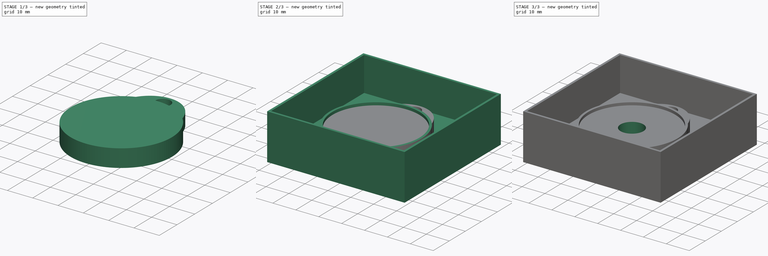
[diagram: build sequence overview — one tinted view per stage of 3, left to right]
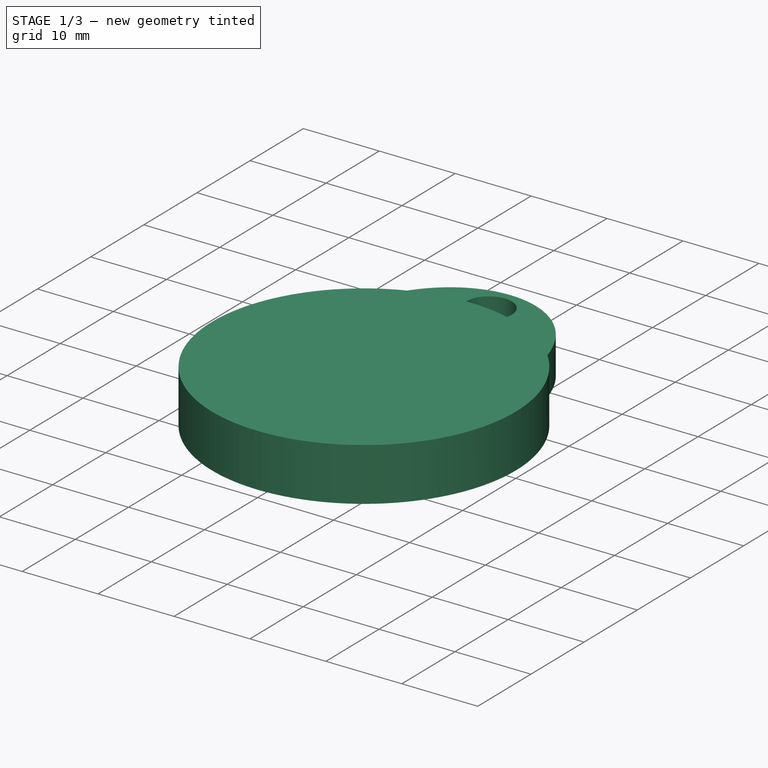
[diagram: stage 1 of 3 — iso view after this stage's code; geometry added in this stage tinted green]
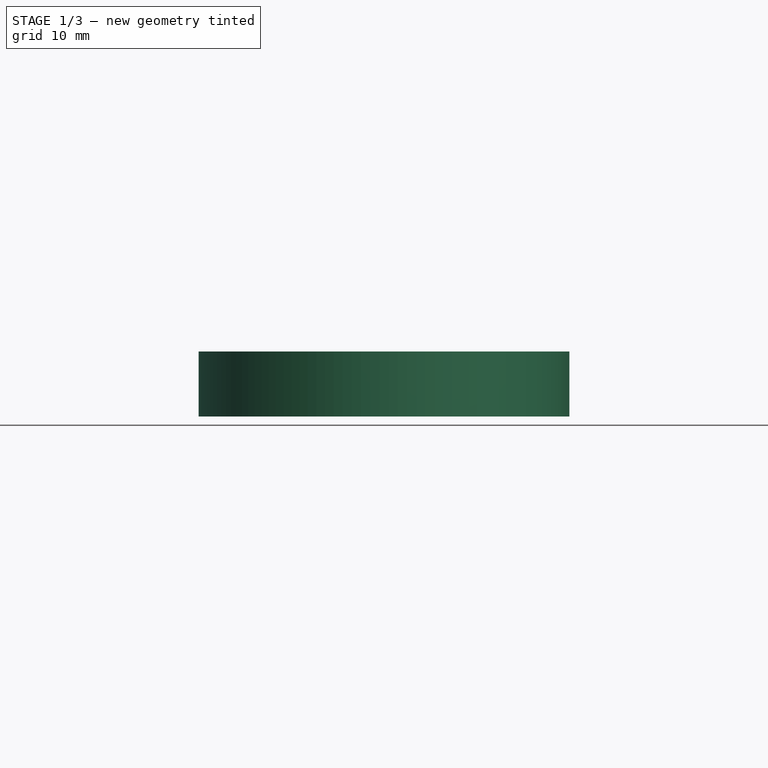
[diagram: stage 1 of 3 — front view after this stage's code; geometry added in this stage tinted green]
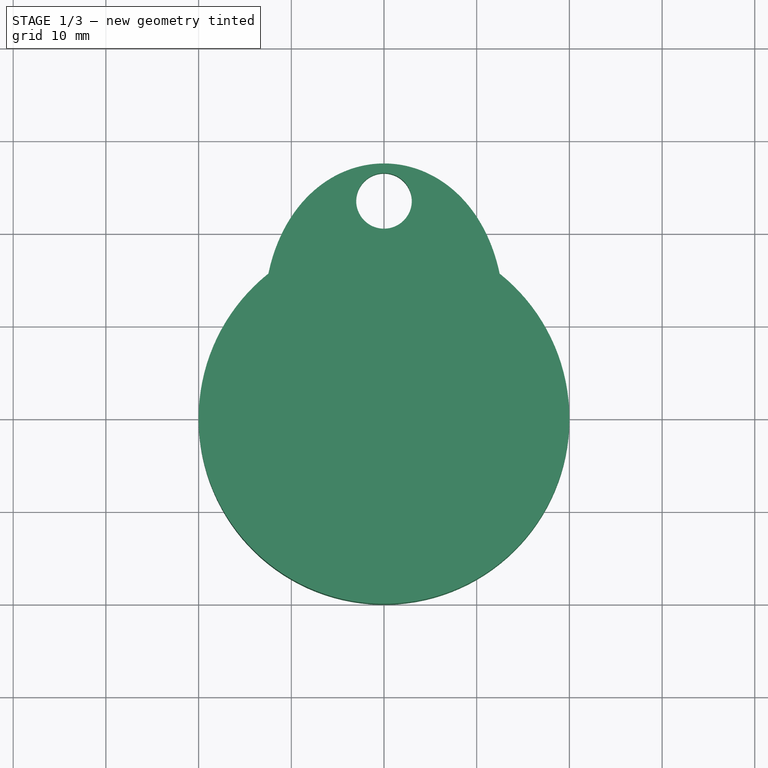
[diagram: stage 1 of 3 — top view after this stage's code; geometry added in this stage tinted green]
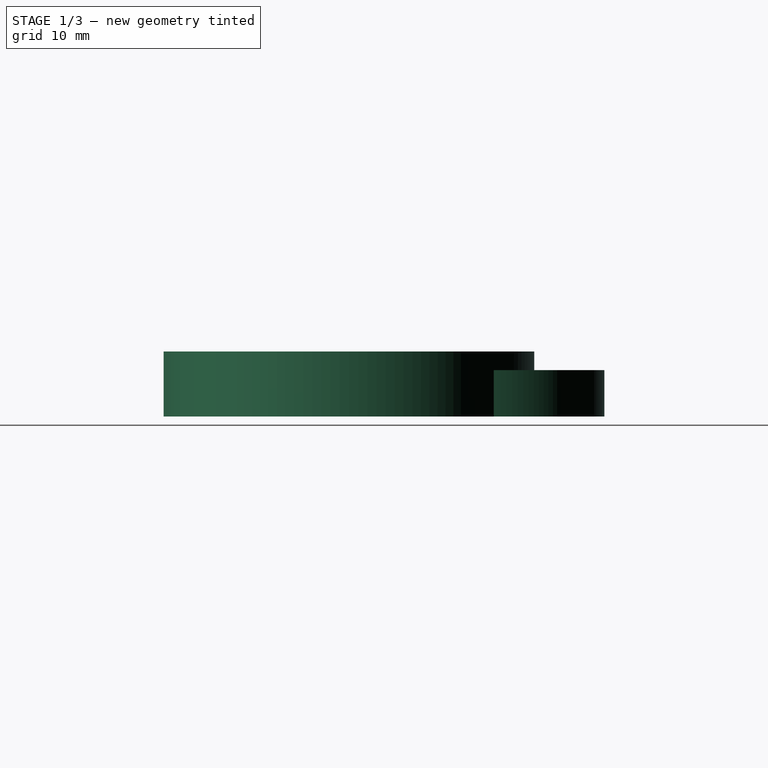
[diagram: stage 1 of 3 — right view after this stage's code; geometry added in this stage tinted green]
FCSTD DOCUMENT  (FreeCAD 0.18R14996 (Git))
Label: Medallion Base Rev F
License: All rights reserved
LicenseURL: http://en.wikipedia.org/wiki/All_rights_reserved
objects: Sketcher::SketchObject×7, PartDesign::Pad×5, PartDesign::Pocket×2, PartDesign::Body×1
note: 22 computed .brp shape members not serialized (recipe doc carries the construction recipe); baked Part::Feature solids carry a one-line shape summary decoded from their .brp

FEATURE [Sketcher::SketchObject] Sketch  label="Medallion Body Profile"
  MapMode = 5
  Support = -> [XY_Plane]
  sketch-geometry (1):
    g0: Circle CenterX=0 CenterY=0 CenterZ=0 NormalX=0 NormalY=0 NormalZ=1 AngleXU=0 Radius=20
  constraints (2):
    c: Coincident(g0,g-1)
    c: Radius(g0) = 20
FEATURE [PartDesign::Pad] Pad  label="Medallion Body"
  Length = 7
  Length2 = 100
  Profile = -> Sketch
  Type = 0
FEATURE [Sketcher::SketchObject] Sketch001  label="Lanyard Eye Profile"
  ExternalGeometry = -> [Sketch]
  MapMode = 5
  Support = -> [XY_Plane]
  sketch-geometry (11):
    g0: Circle CenterX=0 CenterY=23.513 CenterZ=0 NormalX=0 NormalY=0 NormalZ=1 AngleXU=0 Radius=3
    g1-g5: Circle [constr] x5 (B-spline internal-alignment scaffolding for g6; pole/knot coordinates omitted)
    g6: BSplineCurve PolesCount=5 KnotsCount=3 Degree=3 IsPeriodic=0
    g7: GeomPoint [constr] X=0 Y=18.9316 Z=0
    g8: GeomPoint [constr] X=4.45941 Y=14.3218 Z=0
    g9: LineSegment [constr] StartX=-10.8298 StartY=23.4836 StartZ=0 EndX=10.8298 EndY=23.4836 EndZ=0
    g10: LineSegment StartX=-12.4847 StartY=15.6247 StartZ=0 EndX=12.4847 EndY=15.6247 EndZ=0
  constraints (17):
    c: Radius(g0) = 3
    c: PointOnObject(g0,g-2)
    c: Radius(g1) = 0.8
    c: Equal(g1,g2)
    c: Equal(g1,g3)
    c: PointOnObject(g3,g-2)
    c: Equal(g1,g4)
    c: Equal(g1,g5)
    c: PointOnObject(g6,g-3)
    c: InternalAlignment(g1-g5 -> g6) x5
    c: Symmetric(g2,g4,g-2)
    c: PointOnObject(g1,g-3)
    c: Coincident(g9,g2)
    c: Coincident(g9,g4)
    c: Coincident(g10,g5)
    c: Horizontal(g10)
    c: Coincident(g10,g1)
FEATURE [PartDesign::Pad] Pad001  label="Lanyard Eye"
  BaseFeature = -> Pad
  Length = 5
  Length2 = 100
  Profile = -> Sketch001
  Type = 0
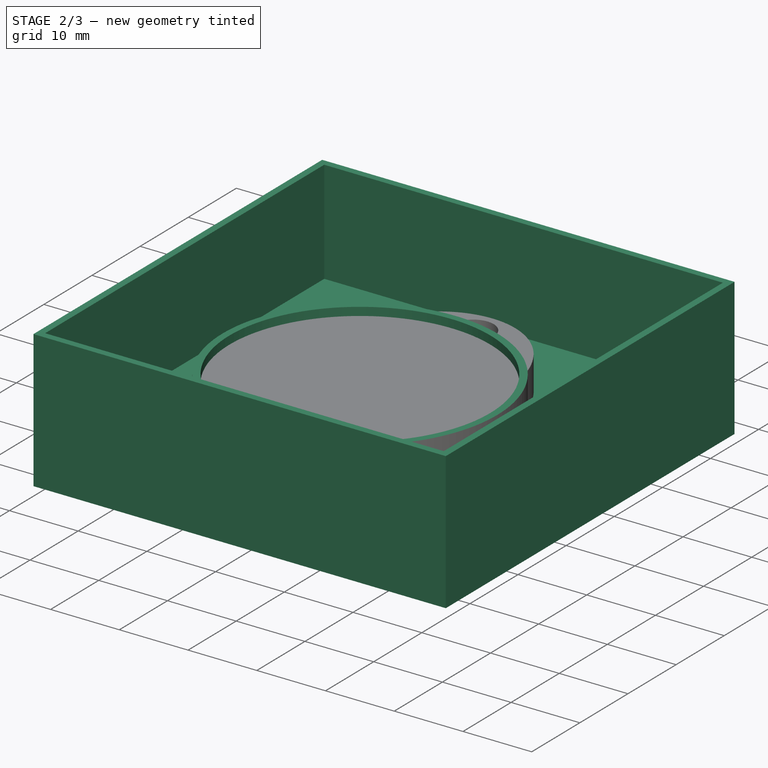
[diagram: stage 2 of 3 — iso view after this stage's code; geometry added in this stage tinted green]
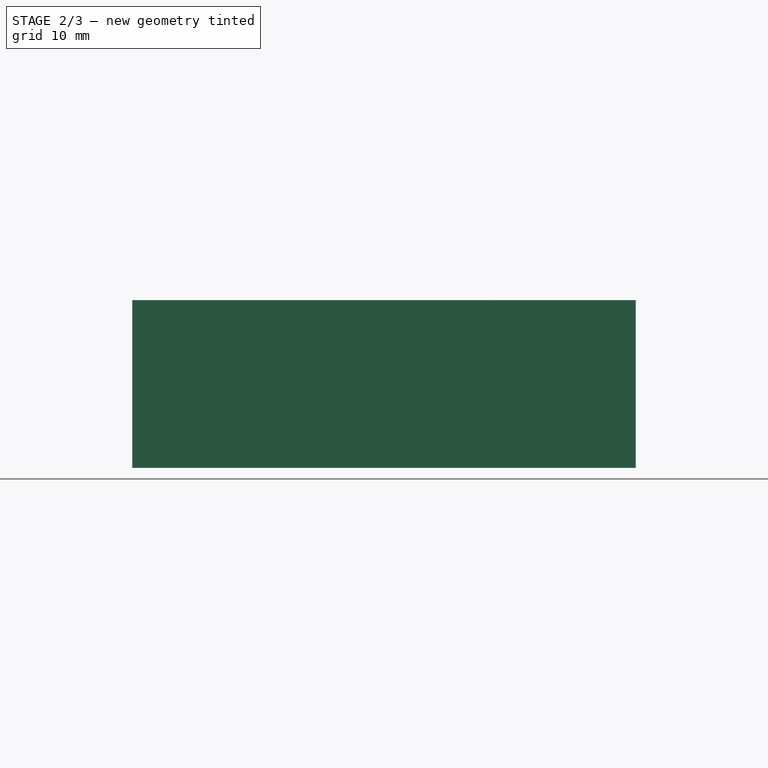
[diagram: stage 2 of 3 — front view after this stage's code; geometry added in this stage tinted green]
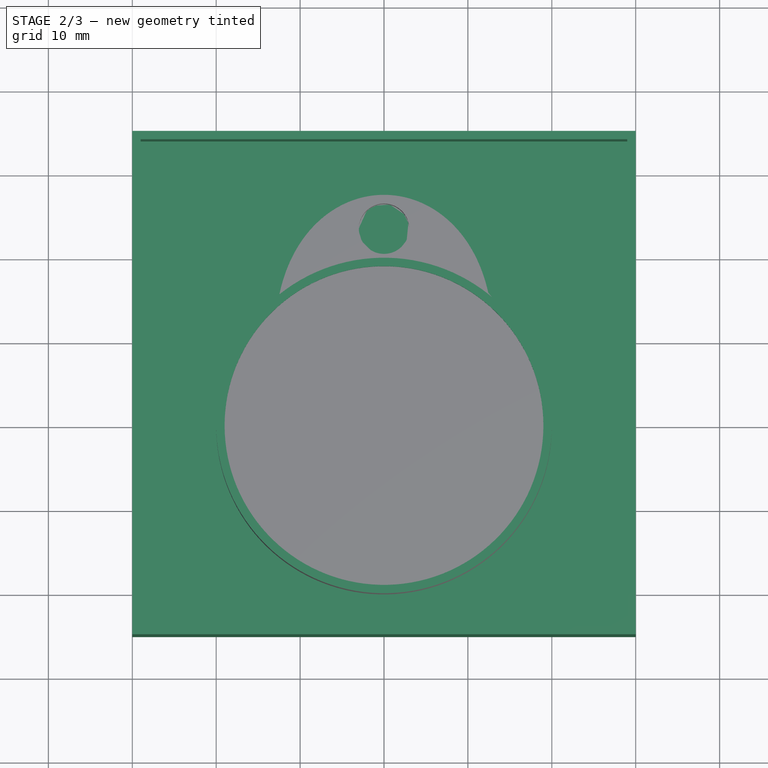
[diagram: stage 2 of 3 — top view after this stage's code; geometry added in this stage tinted green]
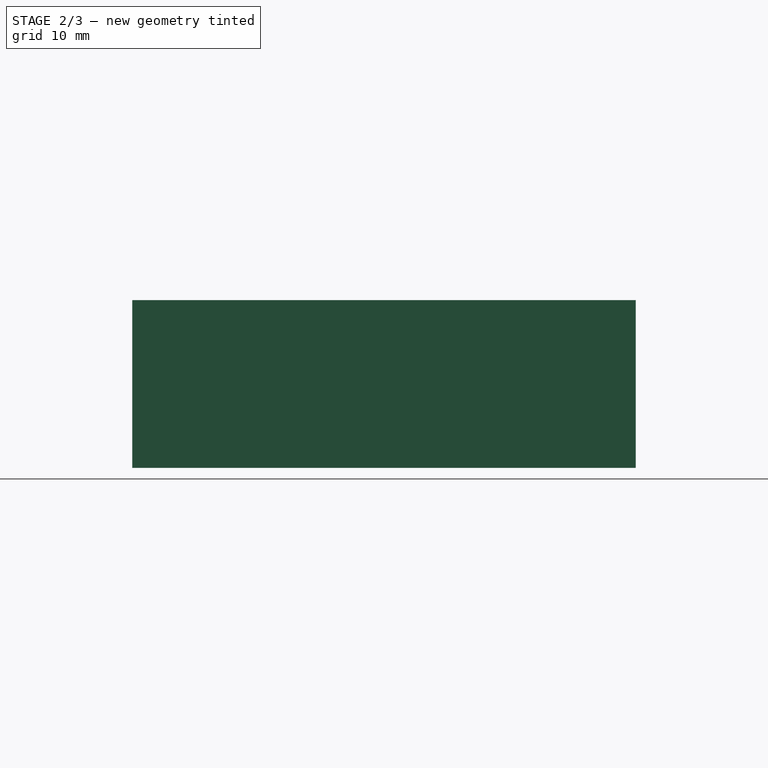
[diagram: stage 2 of 3 — right view after this stage's code; geometry added in this stage tinted green]
FEATURE [Sketcher::SketchObject] Sketch002  label="Face Holder Profile"
  ExternalGeometry = -> [Sketch]
  MapMode = 5
  Support = -> [XY_Plane]
  sketch-geometry (3):
    g0: Circle CenterX=0 CenterY=0 CenterZ=0 NormalX=0 NormalY=0 NormalZ=1 AngleXU=0 Radius=20
    g1: Circle CenterX=0 CenterY=0 CenterZ=0 NormalX=0 NormalY=0 NormalZ=1 AngleXU=0 Radius=19
    g2: LineSegment [constr] StartX=-20 StartY=0 StartZ=0 EndX=-19 EndY=0 EndZ=0
  constraints (8):
    c: Coincident(g0,g-1)
    c: Equal(g-3,g0)
    c: Coincident(g1,g-1)
    c: PointOnObject(g2,g-3)
    c: PointOnObject(g2,g1)
    c: Horizontal(g2)
    c: PointOnObject(g2,g-1)
    c: DistanceX(g2,g2) = 1
FEATURE [PartDesign::Pad] Pad002  label="Face Holder"
  BaseFeature = -> Pad001
  Length = 8.2
  Length2 = 100
  Profile = -> Sketch002
  Refine = true
  Type = 0
FEATURE [Sketcher::SketchObject] Sketch003  label="Box Base Profile"
  MapMode = 5
  Support = -> [XY_Plane]
  sketch-geometry (8):
    g0: LineSegment StartX=-30 StartY=35 StartZ=0 EndX=30 EndY=35 EndZ=0
    g1: LineSegment StartX=30 StartY=35 StartZ=0 EndX=30 EndY=-25 EndZ=0
    g2: LineSegment StartX=30 StartY=-25 StartZ=0 EndX=-30 EndY=-25 EndZ=0
    g3: LineSegment StartX=-30 StartY=-25 StartZ=0 EndX=-30 EndY=35 EndZ=0
    g4: LineSegment [constr] StartX=0 StartY=0 StartZ=0 EndX=-30 EndY=0 EndZ=0
    g5: LineSegment [constr] StartX=0 StartY=0 StartZ=0 EndX=30 EndY=0 EndZ=0
    g6: LineSegment [constr] StartX=-30 StartY=35 StartZ=0 EndX=-30 EndY=0 EndZ=0
    g7: LineSegment [constr] StartX=-30 StartY=-25 StartZ=0 EndX=-30 EndY=0 EndZ=0
  constraints (22):
    c: Coincident(g0,g1)
    c: Coincident(g1,g2)
    c: Coincident(g2,g3)
    c: Coincident(g3,g0)
    c: Horizontal(g0)
    c: Horizontal(g2)
    c: Vertical(g1)
    c: Vertical(g3)
    c: DistanceX(g0,g0) = 60
    c: Coincident(g4,g-1)
    c: PointOnObject(g4,g3)
    c: Horizontal(g4)
    c: Coincident(g5,g-1)
    c: PointOnObject(g5,g1)
    c: Horizontal(g5)
    c: Equal(g4,g5)
    c: Coincident(g6,g4)
    c: Coincident(g6,g0)
    c: DistanceY(g6,g6) = 35
    c: Coincident(g7,g2)
    c: Coincident(g7,g4)
    c: DistanceY(g7,g7) = 25
FEATURE [Sketcher::SketchObject] Sketch004  label="Box Sides Profile"
  ExternalGeometry = -> [Sketch003]
  MapMode = 5
  Support = -> [XY_Plane]
  sketch-geometry (12):
    g0: LineSegment StartX=-30 StartY=35 StartZ=0 EndX=30 EndY=35 EndZ=0
    g1: LineSegment StartX=30 StartY=35 StartZ=0 EndX=30 EndY=-25 EndZ=0
    g2: LineSegment StartX=30 StartY=-25 StartZ=0 EndX=-30 EndY=-25 EndZ=0
    g3: LineSegment StartX=-30 StartY=-25 StartZ=0 EndX=-30 EndY=35 EndZ=0
    g4: LineSegment StartX=-29 StartY=34 StartZ=0 EndX=29 EndY=34 EndZ=0
    g5: LineSegment StartX=29 StartY=34 StartZ=0 EndX=29 EndY=-24 EndZ=0
    g6: LineSegment StartX=29 StartY=-24 StartZ=0 EndX=-29 EndY=-24 EndZ=0
    g7: LineSegment StartX=-29 StartY=-24 StartZ=0 EndX=-29 EndY=34 EndZ=0
    g8: LineSegment [constr] StartX=-29 StartY=34 StartZ=0 EndX=-29 EndY=35 EndZ=0
    g9: LineSegment [constr] StartX=29 StartY=34 StartZ=0 EndX=30 EndY=34 EndZ=0
    g10: LineSegment [constr] StartX=-29 StartY=-24 StartZ=0 EndX=-29 EndY=-25 EndZ=0
    g11: LineSegment [constr] StartX=-29 StartY=-24 StartZ=0 EndX=-30 EndY=-24 EndZ=0
  constraints (34):
    c: Coincident(g0,g1)
    c: Coincident(g1,g2)
    c: Coincident(g2,g3)
    c: Coincident(g3,g0)
    c: Horizontal(g0)
    c: Horizontal(g2)
    c: Vertical(g1)
    c: Vertical(g3)
    c: Coincident(g0,g-3)
    c: Coincident(g1,g-4)
    c: Coincident(g4,g5)
    c: Coincident(g5,g6)
    c: Coincident(g6,g7)
    c: Coincident(g7,g4)
    c: Horizontal(g4)
    c: Horizontal(g6)
    c: Vertical(g5)
    c: Vertical(g7)
    c: Coincident(g8,g4)
    c: PointOnObject(g8,g-3)
    c: Vertical(g8)
    c: Coincident(g9,g4)
    c: PointOnObject(g9,g1)
    c: Horizontal(g9)
    c: Coincident(g10,g6)
    c: PointOnObject(g10,g-4)
    c: Vertical(g10)
    c: Coincident(g11,g10)
    c: PointOnObject(g11,g3)
    c: Horizontal(g11)
    c: Equal(g9,g8)
    c: Equal(g8,g11)
    c: Equal(g11,g10)
    c: DistanceX(g11,g11) = 1
FEATURE [Sketcher::SketchObject] Sketch005  label="Removal Slot Profile"
  MapMode = 5
  Support = -> [XY_Plane]
  sketch-geometry (1):
    g0: Circle CenterX=0 CenterY=0 CenterZ=0 NormalX=0 NormalY=0 NormalZ=1 AngleXU=0 Radius=5
  constraints (2):
    c: Coincident(g0,g-1)
    c: Radius(g0) = 5
FEATURE [Sketcher::SketchObject] Sketch006  label="Lanyard Eye Hole Extension Profile"
  ExternalGeometry = -> [Sketch001]
  sketch-geometry (1):
    g0: Circle CenterX=0 CenterY=23.513 CenterZ=0 NormalX=0 NormalY=0 NormalZ=1 AngleXU=0 Radius=3
  constraints (2):
    c: Coincident(g-3,g0)
    c: Equal(g0,g-3)
FEATURE [PartDesign::Pad] Pad003  label="Box Base"
  BaseFeature = -> Pad002
  Length = 5
  Length2 = 100
  Profile = -> Sketch003
  Reversed = true
  Type = 0
FEATURE [PartDesign::Pad] Pad004  label="Box Sides"
  BaseFeature = -> Pad003
  Length = 15
  Length2 = 100
  Profile = -> Sketch004
  Type = 0
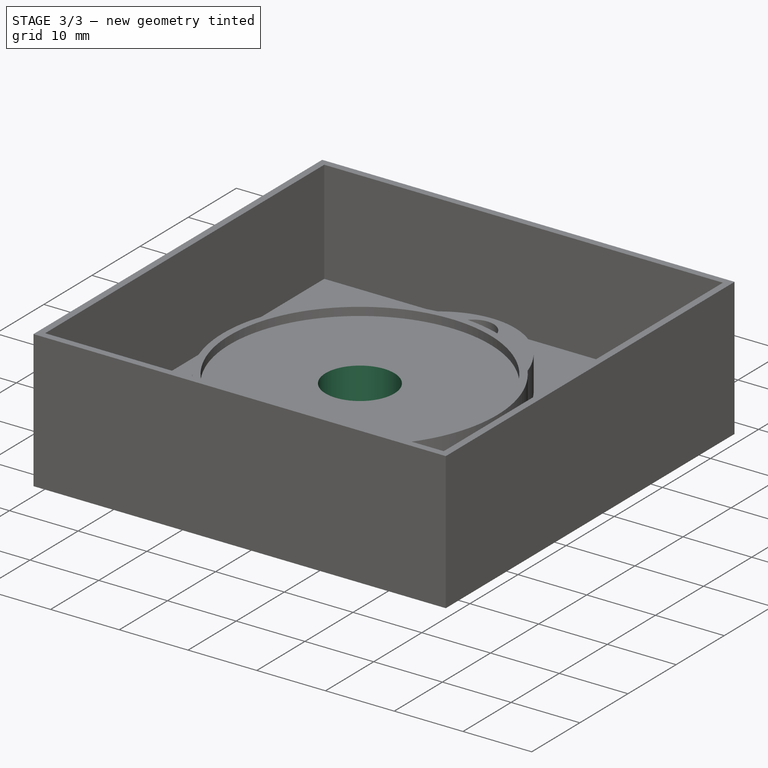
[diagram: stage 3 of 3 — iso view after this stage's code; geometry added in this stage tinted green]
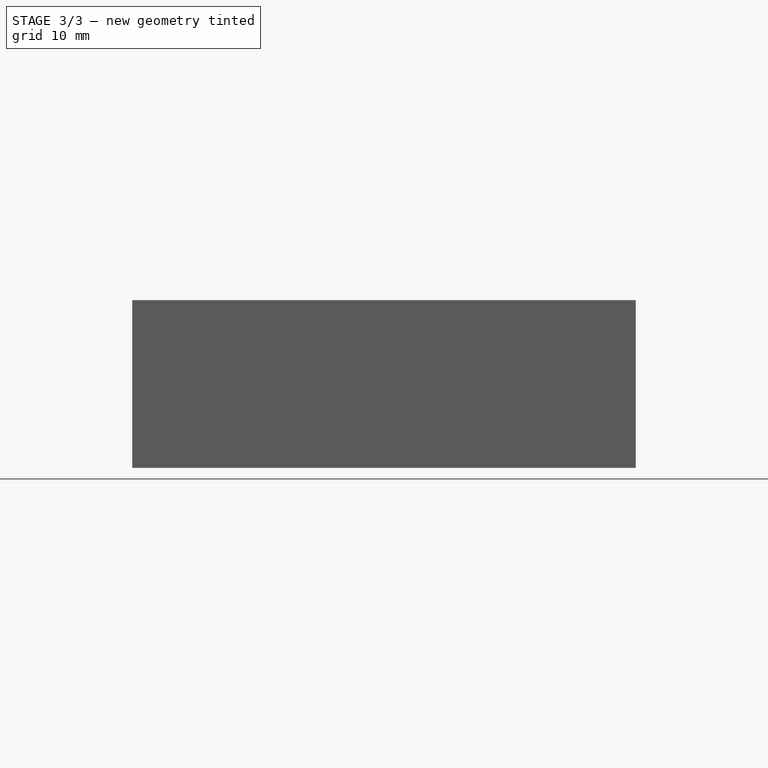
[diagram: stage 3 of 3 — front view after this stage's code; geometry added in this stage tinted green]
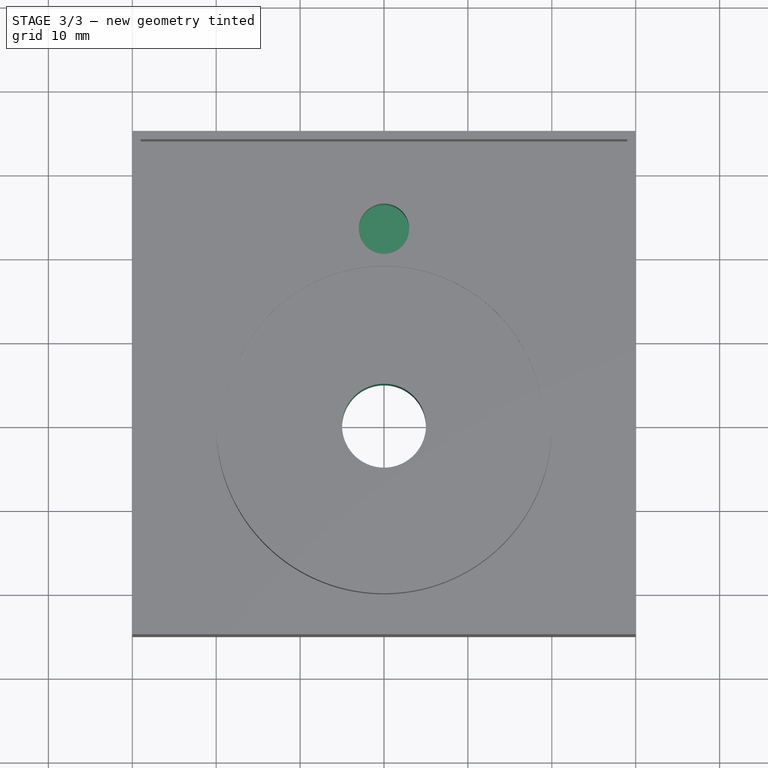
[diagram: stage 3 of 3 — top view after this stage's code; geometry added in this stage tinted green]
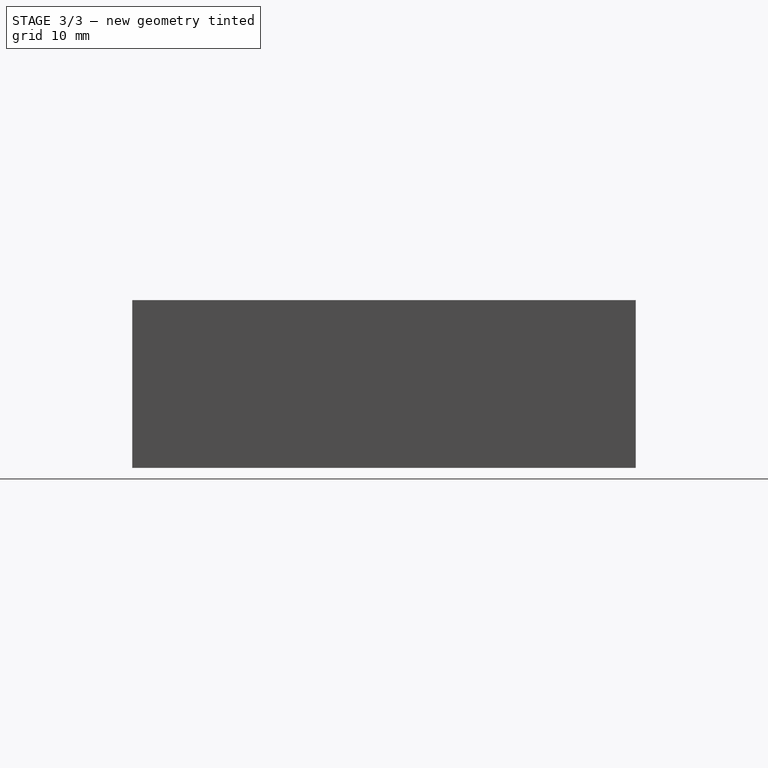
[diagram: stage 3 of 3 — right view after this stage's code; geometry added in this stage tinted green]
FEATURE [PartDesign::Pocket] Pocket
  BaseFeature = -> Pad004
  Length = 4
  Length2 = 100
  Profile = -> Sketch006
  Type = 0
FEATURE [PartDesign::Pocket] Pocket001
  BaseFeature = -> Pocket
  Length = 5
  Length2 = 100
  Midplane = true
  Profile = -> Sketch005
  Type = 1
FEATURE [PartDesign::Body] Body
  Group = -> [Sketch,Pad,Sketch001,Pad001,Sketch002,Pad002,Sketch003,Sketch004,Sketch005,Sketch006,Pad003,Pad004,Pocket,Pocket001]
  Origin = -> Origin
  Tip = -> Pocket001
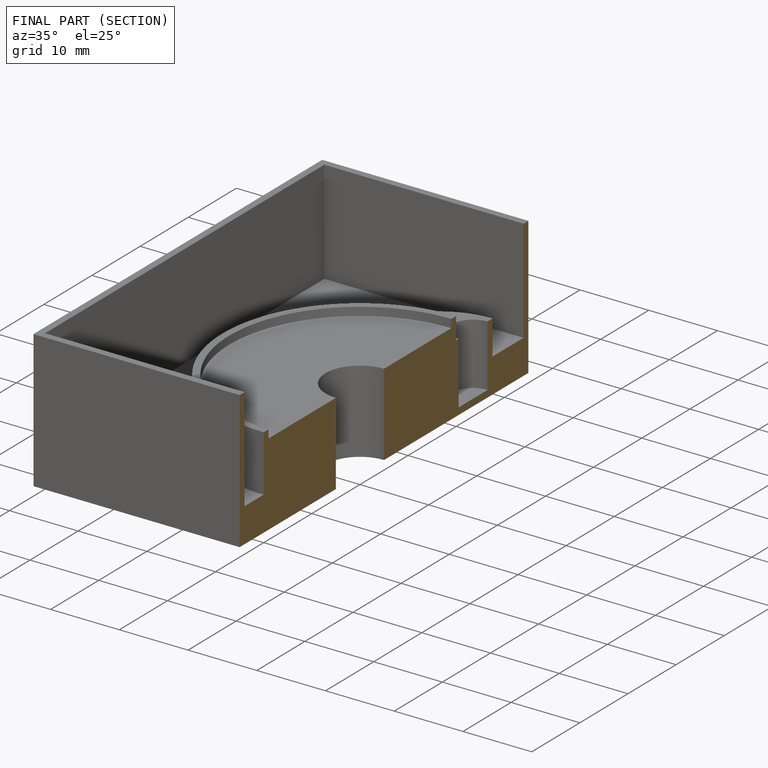
[diagram: finished part — half-section view (interior)]
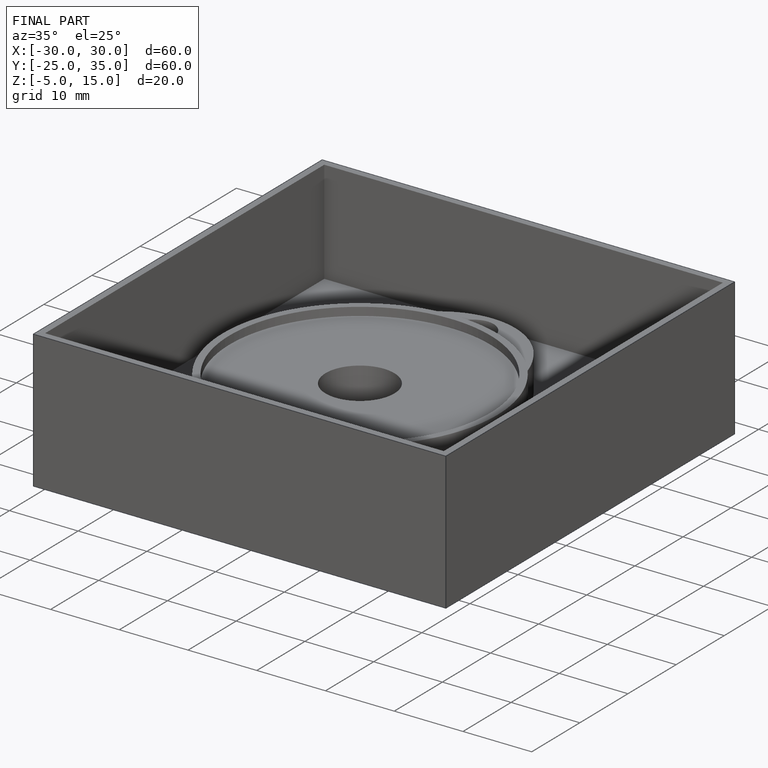
[diagram: finished part — iso view with bounding-box wireframe]
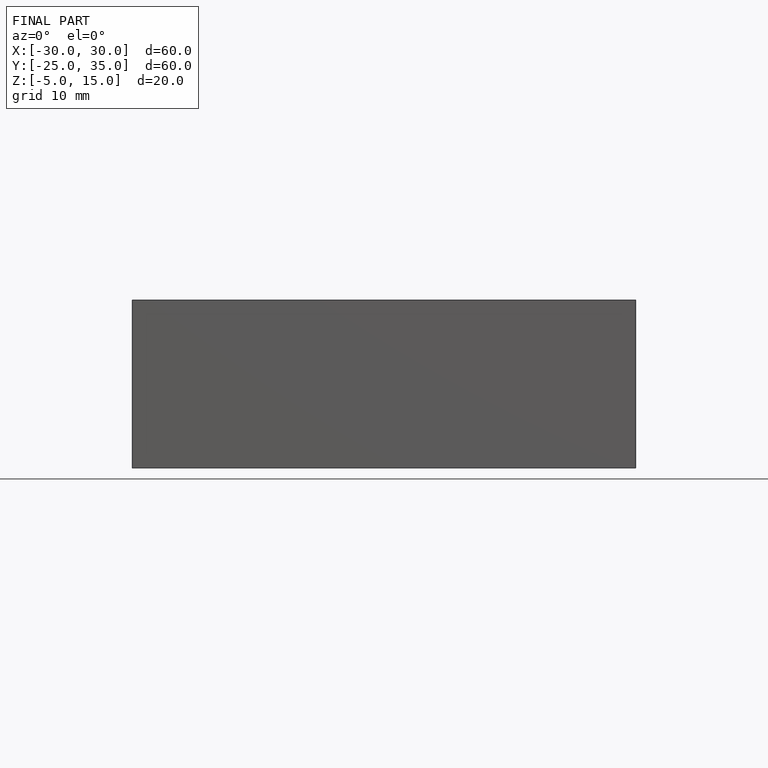
[diagram: finished part — front view with bounding-box wireframe]
